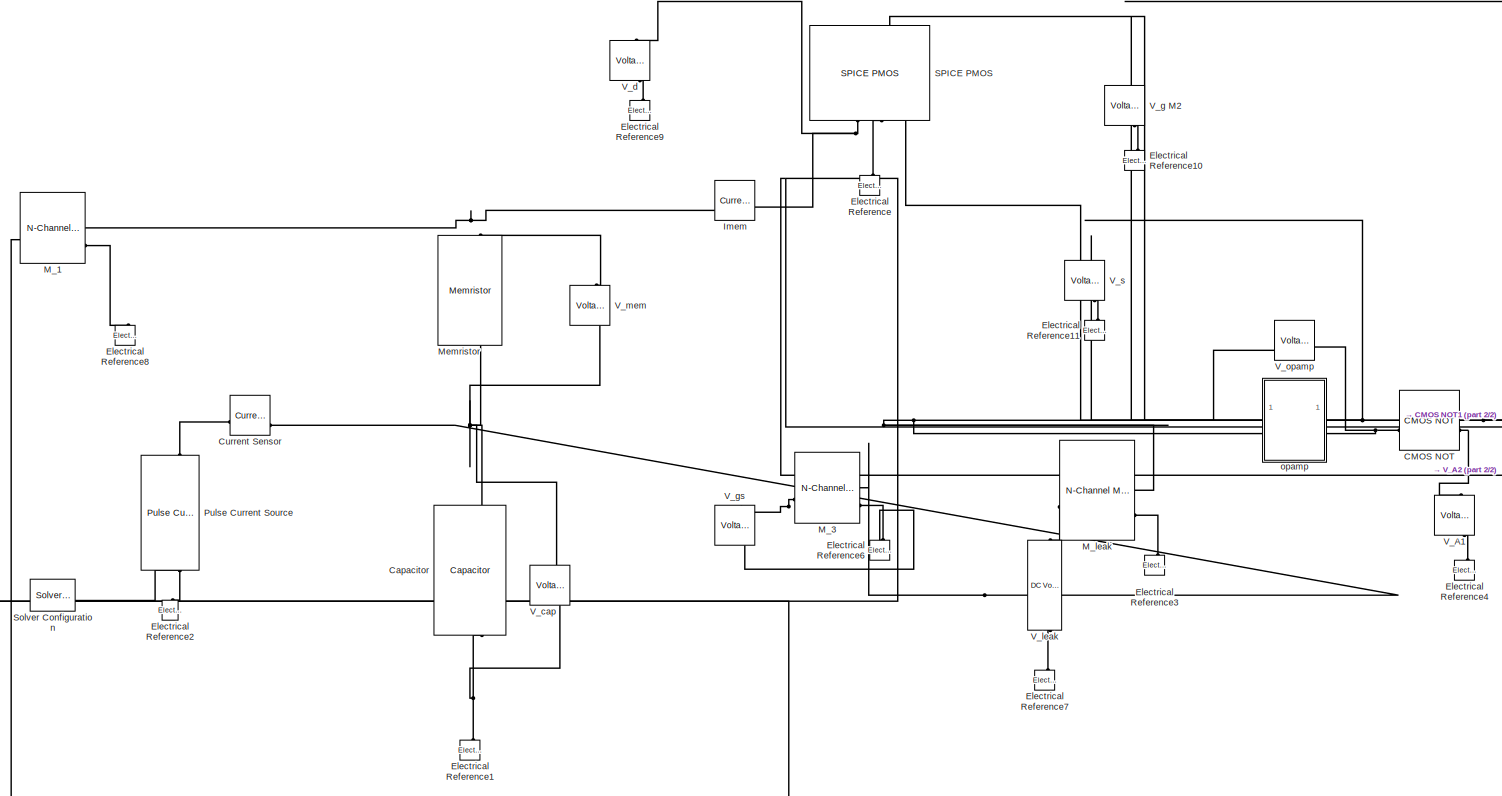
[diagram: root canvas - part 1/2, most of the canvas]
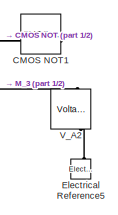
[diagram: root canvas - part 2/2, middle right region]
MODEL slx_45c0e42ad2c6
KIND model
CONFIG AbsTol = 1e-3
CONFIG EnableMultiTasking = off
CONFIG FixedStep = auto
CONFIG MaxStep = auto
CONFIG MinStep = auto
CONFIG RelTol = 1e-3
CONFIG SampleTimeConstraint = Unconstrained
CONFIG SolverName = ode23t
CONFIG StartTime = 0.0
CONFIG StopTime = 10
BLOCK [Reference] CMOS NOT  REF=ee_lib/Integrated Circuits/Logic/CMOS NOT
  SourceBlock = ee_lib/Integrated Circuits/Logic/CMOS NOT
  SourceType = CMOS NOT
BLOCK [Reference] CMOS NOT1  REF=ee_lib/Integrated Circuits/Logic/CMOS NOT
  SourceBlock = ee_lib/Integrated Circuits/Logic/CMOS NOT
  SourceType = CMOS NOT
BLOCK [Reference] Capacitor  REF=fl_lib/Electrical/Electrical Elements/Capacitor
  NameLocation = left
  SourceBlock = fl_lib/Electrical/Electrical Elements/Capacitor
  SourceType = Capacitor
BLOCK [Reference] Current Sensor  REF=fl_lib/Electrical/Electrical Sensors/Current Sensor
  SourceBlock = fl_lib/Electrical/Electrical Sensors/Current Sensor
  SourceType = Current Sensor
BLOCK [Reference] Electrical Reference  REF=fl_lib/Electrical/Electrical Elements/Electrical Reference
  NameLocation = right
  SourceBlock = fl_lib/Electrical/Electrical Elements/Electrical Reference
  SourceType = Electrical Reference
BLOCK [Reference] Electrical Reference1  REF=fl_lib/Electrical/Electrical Elements/Electrical Reference
  NameLocation = right
  SourceBlock = fl_lib/Electrical/Electrical Elements/Electrical Reference
  SourceType = Electrical Reference
BLOCK [Reference] Electrical Reference10  REF=fl_lib/Electrical/Electrical Elements/Electrical Reference
  NameLocation = right
  SourceBlock = fl_lib/Electrical/Electrical Elements/Electrical Reference
  SourceType = Electrical Reference
BLOCK [Reference] Electrical Reference11  REF=fl_lib/Electrical/Electrical Elements/Electrical Reference
  NameLocation = right
  SourceBlock = fl_lib/Electrical/Electrical Elements/Electrical Reference
  SourceType = Electrical Reference
BLOCK [Reference] Electrical Reference2  REF=fl_lib/Electrical/Electrical Elements/Electrical Reference
  NameLocation = right
  SourceBlock = fl_lib/Electrical/Electrical Elements/Electrical Reference
  SourceType = Electrical Reference
BLOCK [Reference] Electrical Reference3  REF=fl_lib/Electrical/Electrical Elements/Electrical Reference
  NameLocation = right
  SourceBlock = fl_lib/Electrical/Electrical Elements/Electrical Reference
  SourceType = Electrical Reference
BLOCK [Reference] Electrical Reference4  REF=fl_lib/Electrical/Electrical Elements/Electrical Reference
  NameLocation = right
  SourceBlock = fl_lib/Electrical/Electrical Elements/Electrical Reference
  SourceType = Electrical Reference
BLOCK [Reference] Electrical Reference5  REF=fl_lib/Electrical/Electrical Elements/Electrical Reference
  NameLocation = right
  SourceBlock = fl_lib/Electrical/Electrical Elements/Electrical Reference
  SourceType = Electrical Reference
BLOCK [Reference] Electrical Reference6  REF=fl_lib/Electrical/Electrical Elements/Electrical Reference
  NameLocation = right
  SourceBlock = fl_lib/Electrical/Electrical Elements/Electrical Reference
  SourceType = Electrical Reference
BLOCK [Reference] Electrical Reference7  REF=fl_lib/Electrical/Electrical Elements/Electrical Reference
  NameLocation = right
  SourceBlock = fl_lib/Electrical/Electrical Elements/Electrical Reference
  SourceType = Electrical Reference
BLOCK [Reference] Electrical Reference8  REF=fl_lib/Electrical/Electrical Elements/Electrical Reference
  NameLocation = right
  SourceBlock = fl_lib/Electrical/Electrical Elements/Electrical Reference
  SourceType = Electrical Reference
BLOCK [Reference] Electrical Reference9  REF=fl_lib/Electrical/Electrical Elements/Electrical Reference
  NameLocation = right
  SourceBlock = fl_lib/Electrical/Electrical Elements/Electrical Reference
  SourceType = Electrical Reference
BLOCK [Reference] Imem  REF=fl_lib/Electrical/Electrical Sensors/Current Sensor
  SourceBlock = fl_lib/Electrical/Electrical Sensors/Current Sensor
  SourceType = Current Sensor
BLOCK [Reference] M_1  REF=ee_lib/Semiconductors &
Converters/N-Channel MOSFET
  SourceBlock = ee_lib/Semiconductors &\nConverters/N-Channel MOSFET
  SourceType = N-Channel MOSFET
BLOCK [Reference] M_3  REF=ee_lib/Semiconductors &
Converters/N-Channel MOSFET
  SourceBlock = ee_lib/Semiconductors &\nConverters/N-Channel MOSFET
  SourceType = N-Channel MOSFET
BLOCK [Reference] M_leak  REF=ee_lib/Semiconductors &
Converters/N-Channel MOSFET
  SourceBlock = ee_lib/Semiconductors &\nConverters/N-Channel MOSFET
  SourceType = N-Channel MOSFET
BLOCK [Reference] Memristor  REF=fl_lib/Electrical/Electrical Elements/Memristor
  NameLocation = left
  SourceBlock = fl_lib/Electrical/Electrical Elements/Memristor
  SourceType = Memristor
BLOCK [Reference] Pulse Current Source  REF=ee_lib/Additional
Components/SPICE Sources/Pulse Current Source
  LibrarySourceBlock = ee_lib/Sources/Pulse Current Source
  NameLocation = left
  SourceBlock = ee_lib/Additional\nComponents/SPICE Sources/Pulse Current Source
  SourceType = Pulse Current Source
BLOCK [Reference] SPICE PMOS  REF=ee_lib/Additional
Components/SPICE Semiconductors/SPICE PMOS
  NameLocation = left
  SourceBlock = ee_lib/Additional\nComponents/SPICE Semiconductors/SPICE PMOS
  SourceType = SPICE PMOS
BLOCK [Reference] Solver Configuration  REF=nesl_utility/Solver
Configuration
  SourceBlock = nesl_utility/Solver\nConfiguration
  SourceType = Solver\nConfiguration
BLOCK [Reference] V_A1  REF=fl_lib/Electrical/Electrical Sensors/Voltage Sensor
  NameLocation = right
  SourceBlock = fl_lib/Electrical/Electrical Sensors/Voltage Sensor
  SourceType = Voltage Sensor
BLOCK [Reference] V_A2  REF=fl_lib/Electrical/Electrical Sensors/Voltage Sensor
  NameLocation = right
  SourceBlock = fl_lib/Electrical/Electrical Sensors/Voltage Sensor
  SourceType = Voltage Sensor
BLOCK [Reference] V_cap  REF=fl_lib/Electrical/Electrical Sensors/Voltage Sensor
  NameLocation = right
  SourceBlock = fl_lib/Electrical/Electrical Sensors/Voltage Sensor
  SourceType = Voltage Sensor
BLOCK [Reference] V_d  REF=fl_lib/Electrical/Electrical Sensors/Voltage Sensor
  NameLocation = right
  SourceBlock = fl_lib/Electrical/Electrical Sensors/Voltage Sensor
  SourceType = Voltage Sensor
BLOCK [Reference] V_g M2  REF=fl_lib/Electrical/Electrical Sensors/Voltage Sensor
  NameLocation = right
  SourceBlock = fl_lib/Electrical/Electrical Sensors/Voltage Sensor
  SourceType = Voltage Sensor
BLOCK [Reference] V_gs  REF=fl_lib/Electrical/Electrical Sensors/Voltage Sensor
  NameLocation = right
  SourceBlock = fl_lib/Electrical/Electrical Sensors/Voltage Sensor
  SourceType = Voltage Sensor
BLOCK [Reference] V_leak  REF=fl_lib/Electrical/Electrical Sources/DC Voltage Source
  NameLocation = right
  SourceBlock = fl_lib/Electrical/Electrical Sources/DC Voltage Source
  SourceType = DC Voltage Source
BLOCK [Reference] V_mem  REF=fl_lib/Electrical/Electrical Sensors/Voltage Sensor
  NameLocation = right
  SourceBlock = fl_lib/Electrical/Electrical Sensors/Voltage Sensor
  SourceType = Voltage Sensor
BLOCK [Reference] V_opamp  REF=fl_lib/Electrical/Electrical Sensors/Voltage Sensor
  SourceBlock = fl_lib/Electrical/Electrical Sensors/Voltage Sensor
  SourceType = Voltage Sensor
BLOCK [Reference] V_s  REF=fl_lib/Electrical/Electrical Sensors/Voltage Sensor
  NameLocation = right
  SourceBlock = fl_lib/Electrical/Electrical Sensors/Voltage Sensor
  SourceType = Voltage Sensor
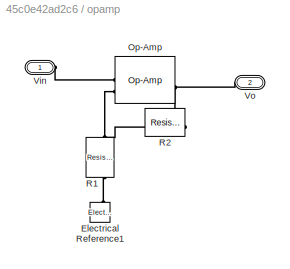
BLOCK [SubSystem] opamp
BLOCK [Reference] opamp/Electrical Reference1  REF=fl_lib/Electrical/Electrical Elements/Electrical Reference
  NameLocation = right
  SourceBlock = fl_lib/Electrical/Electrical Elements/Electrical Reference
  SourceType = Electrical Reference
BLOCK [Reference] opamp/Op-Amp  REF=fl_lib/Electrical/Electrical Elements/Op-Amp
  SourceBlock = fl_lib/Electrical/Electrical Elements/Op-Amp
  SourceType = Op-Amp
BLOCK [Reference] opamp/R1  REF=fl_lib/Electrical/Electrical Elements/Resistor
  NameLocation = right
  SourceBlock = fl_lib/Electrical/Electrical Elements/Resistor
  SourceType = Resistor
BLOCK [Reference] opamp/R2  REF=fl_lib/Electrical/Electrical Elements/Resistor
  SourceBlock = fl_lib/Electrical/Electrical Elements/Resistor
  SourceType = Resistor
BLOCK [PMIOPort] opamp/Vin
  Side = Left
BLOCK [PMIOPort] opamp/Vo
  Port = 2
  Side = Right
PNET net1: CMOS NOT1:LConn1 -- CMOS NOT:RConn1 -- SPICE PMOS:LConn1 -- V_A1:LConn1 -- V_g M2:LConn1
PNET net2: CMOS NOT1:RConn1 -- M_1:LConn1 -- M_3:LConn1 -- V_A2:LConn1 -- V_gs:LConn1
PNET net3: CMOS NOT:LConn1 -- SPICE PMOS:RConn3 -- V_opamp:LConn1 -- V_s:LConn1 -- opamp:RConn1
PNET net4: Capacitor:LConn1 -- Current Sensor:RConn2 -- M_3:RConn1 -- M_leak:RConn1 -- Memristor:RConn1 -- V_cap:LConn1 -- V_mem:RConn2 -- V_opamp:RConn2 -- opamp:LConn1
PNET net5: Capacitor:RConn1 -- Electrical Reference1:LConn1 -- V_cap:RConn2
PLINE Current Sensor:LConn1 -- Pulse Current Source:RConn1
PLINE Electrical Reference10:LConn1 -- V_g M2:RConn2
PLINE Electrical Reference11:LConn1 -- V_s:RConn2
PNET net6: Electrical Reference2:LConn1 -- Pulse Current Source:LConn1 -- Solver Configuration:RConn1
PLINE Electrical Reference3:LConn1 -- M_leak:RConn2
PLINE Electrical Reference4:LConn1 -- V_A1:RConn2
PLINE Electrical Reference5:LConn1 -- V_A2:RConn2
PNET net7: Electrical Reference6:LConn1 -- M_3:RConn2 -- V_gs:RConn2
PLINE Electrical Reference7:LConn1 -- V_leak:RConn1
PLINE Electrical Reference8:LConn1 -- M_1:RConn2
PLINE Electrical Reference9:LConn1 -- V_d:RConn2
PLINE Electrical Reference:LConn1 -- SPICE PMOS:RConn2
PNET net8: Imem:LConn1 -- SPICE PMOS:RConn1 -- V_d:LConn1
PNET net9: Imem:RConn2 -- M_1:RConn1 -- Memristor:LConn1 -- V_mem:LConn1
PLINE M_leak:LConn1 -- V_leak:LConn1
PLINE opamp/Electrical Reference1:LConn1 -- opamp/R1:LConn1
PLINE opamp/Op-Amp:LConn1 -- opamp/Vin:RConn1
PNET net10: opamp/Op-Amp:LConn2 -- opamp/R1:RConn1 -- opamp/R2:LConn1
PNET net11: opamp/Op-Amp:RConn1 -- opamp/R2:RConn1 -- opamp/Vo:RConn1
note: PNET lines group multi-terminal physical nets as a canonical sorted terminal list (undirected conserving connections); 2-terminal nets keep the pairwise PLINE form
